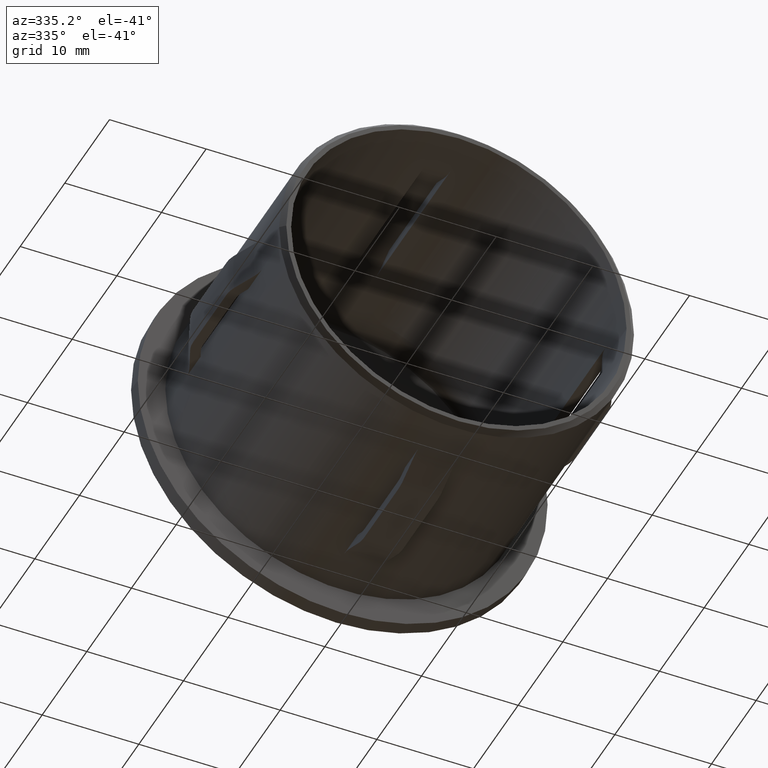
[diagram: clean part render]
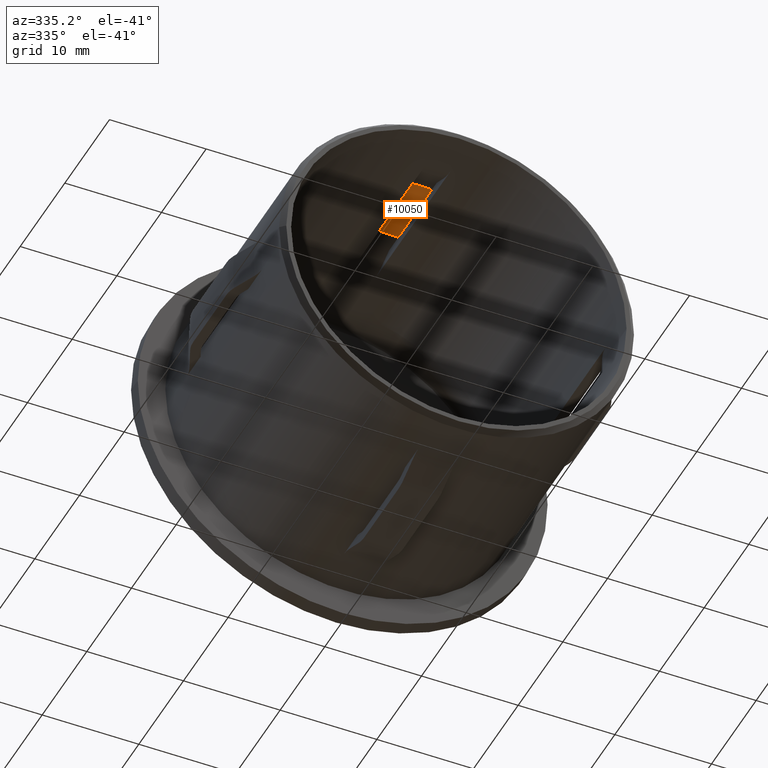
[diagram: same view with one face highlighted and labeled with its STEP entity id]
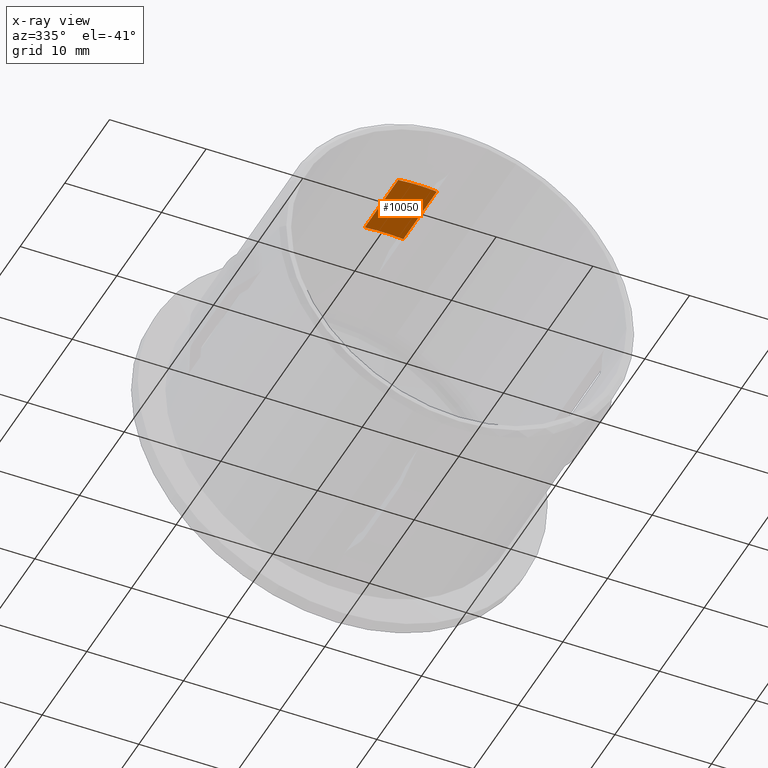
[diagram: x-ray of the same camera — body ghosted, the highlighted face saturated]
A machine part, auxiliary view. The second image highlights one B-rep face of the part: STEP entity #10050.
The next image is the same camera in x-ray: the body ghosted, the highlighted face saturated — about 0% of this face is hidden behind the body in this view.
In plain terms, the highlighted cylindrical surface (partial cylindrical patch) has radius 18.85 mm, axis along (0, -1, -0).
Its self-contained STEP definition (entity closure, byte-faithful):
#302 = CIRCLE ( 'NONE', #11562, 18.84999999999997655 ) ;
#349 = CARTESIAN_POINT ( 'NONE',  ( -1.999999999999980016, 31.99999999999999289, 18.74359890736032241 ) ) ;
#478 = ORIENTED_EDGE ( 'NONE', *, *, #10798, .T. ) ;
#1387 = CIRCLE ( 'NONE', #8300, 18.84999999999996945 ) ;
#1525 = ORIENTED_EDGE ( 'NONE', *, *, #5662, .F. ) ;
#2476 = VERTEX_POINT ( 'NONE', #5118 ) ;
#2709 = CYLINDRICAL_SURFACE ( 'NONE', #13625, 18.84999999999997300 ) ;
#3016 = DIRECTION ( 'NONE',  ( -1.421951005676655281E-15, 1.000000000000000000, 0.000000000000000000 ) ) ;
#3026 = VERTEX_POINT ( 'NONE', #4217 ) ;
#3084 = ORIENTED_EDGE ( 'NONE', *, *, #7882, .T. ) ;
#3357 = DIRECTION ( 'NONE',  ( 1.421951005676655478E-15, -1.000000000000000000, -0.000000000000000000 ) ) ;
#3868 = EDGE_LOOP ( 'NONE', ( #478, #3084, #1525, #7548 ) ) ;
#4217 = CARTESIAN_POINT ( 'NONE',  ( 2.000000000000012434, 9.249999999999998224, 18.74359890736032241 ) ) ;
#4566 = VECTOR ( 'NONE', #4977, 1000.000000000000000 ) ;
#4977 = DIRECTION ( 'NONE',  ( -1.421951005676655281E-15, 1.000000000000000000, 0.000000000000000000 ) ) ;
#5118 = CARTESIAN_POINT ( 'NONE',  ( -1.999999999999947597, 9.250000000000001776, 18.74359890736032241 ) ) ;
#5662 = EDGE_CURVE ( 'NONE', #15247, #10238, #302, .T. ) ;
#6066 = DIRECTION ( 'NONE',  ( 1.421951005676655478E-15, -1.000000000000000000, -0.000000000000000000 ) ) ;
#6491 = CARTESIAN_POINT ( 'NONE',  ( 2.381767934508400130E-14, 16.74999999999997158, 0.000000000000000000 ) ) ;
#6935 = DIRECTION ( 'NONE',  ( 1.000000000000000000, 1.380416559132740011E-15, 0.000000000000000000 ) ) ;
#7548 = ORIENTED_EDGE ( 'NONE', *, *, #14842, .F. ) ;
#7882 = EDGE_CURVE ( 'NONE', #2476, #10238, #10952, .T. ) ;
#7914 = CARTESIAN_POINT ( 'NONE',  ( 1.999999999999989564, 16.74999999999997513, 18.74359890736033307 ) ) ;
#8300 = AXIS2_PLACEMENT_3D ( 'NONE', #10514, #3357, #6935 ) ;
#10050 = ADVANCED_FACE ( 'NONE', ( #12274 ), #2709, .F. ) ;
#10095 = VECTOR ( 'NONE', #3016, 1000.000000000000000 ) ;
#10238 = VERTEX_POINT ( 'NONE', #11657 ) ;
#10514 = CARTESIAN_POINT ( 'NONE',  ( 3.448231188765892005E-14, 9.249999999999969802, 0.000000000000000000 ) ) ;
#10765 = CARTESIAN_POINT ( 'NONE',  ( 2.132926508514975230E-15, 31.99999999999999289, 0.000000000000000000 ) ) ;
#10798 = EDGE_CURVE ( 'NONE', #3026, #2476, #1387, .T. ) ;
#10952 = LINE ( 'NONE', #349, #4566 ) ;
#11562 = AXIS2_PLACEMENT_3D ( 'NONE', #6491, #12452, #13647 ) ;
#11657 = CARTESIAN_POINT ( 'NONE',  ( -1.999999999999989564, 16.74999999999996803, 18.74359890736032952 ) ) ;
#12274 = FACE_OUTER_BOUND ( 'NONE', #3868, .T. ) ;
#12452 = DIRECTION ( 'NONE',  ( 1.421951005676655478E-15, -1.000000000000000000, -0.000000000000000000 ) ) ;
#12810 = CARTESIAN_POINT ( 'NONE',  ( 1.999999999999980016, 31.99999999999999289, 18.74359890736032241 ) ) ;
#13079 = DIRECTION ( 'NONE',  ( 1.000000000000000000, 1.472444329741589017E-15, 0.000000000000000000 ) ) ;
#13296 = LINE ( 'NONE', #12810, #10095 ) ;
#13625 = AXIS2_PLACEMENT_3D ( 'NONE', #10765, #6066, #13079 ) ;
#13647 = DIRECTION ( 'NONE',  ( 1.000000000000000000, 1.472444329741588819E-15, 0.000000000000000000 ) ) ;
#14842 = EDGE_CURVE ( 'NONE', #3026, #15247, #13296, .T. ) ;
#15247 = VERTEX_POINT ( 'NONE', #7914 ) ;